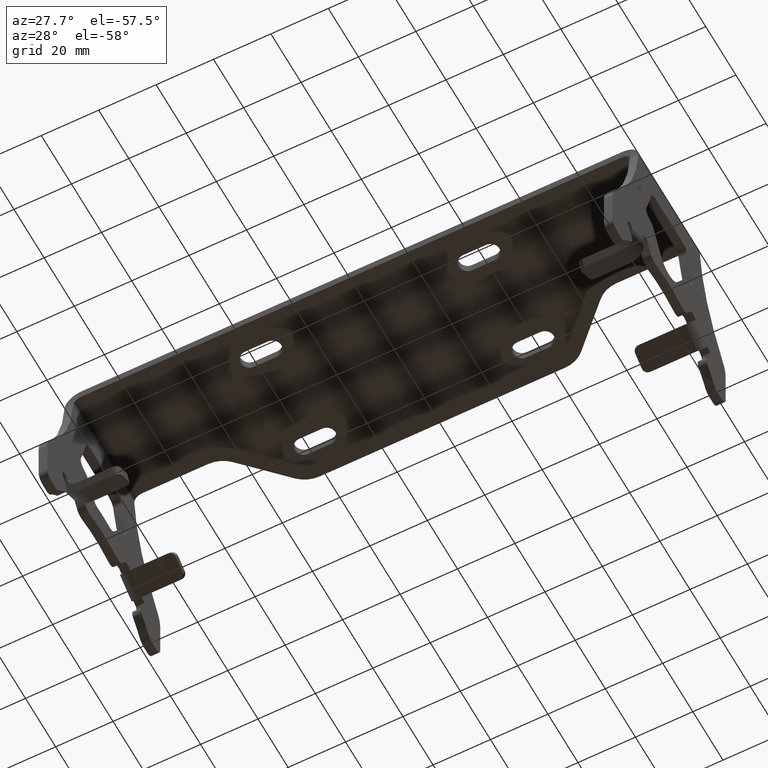
[diagram: clean part render]
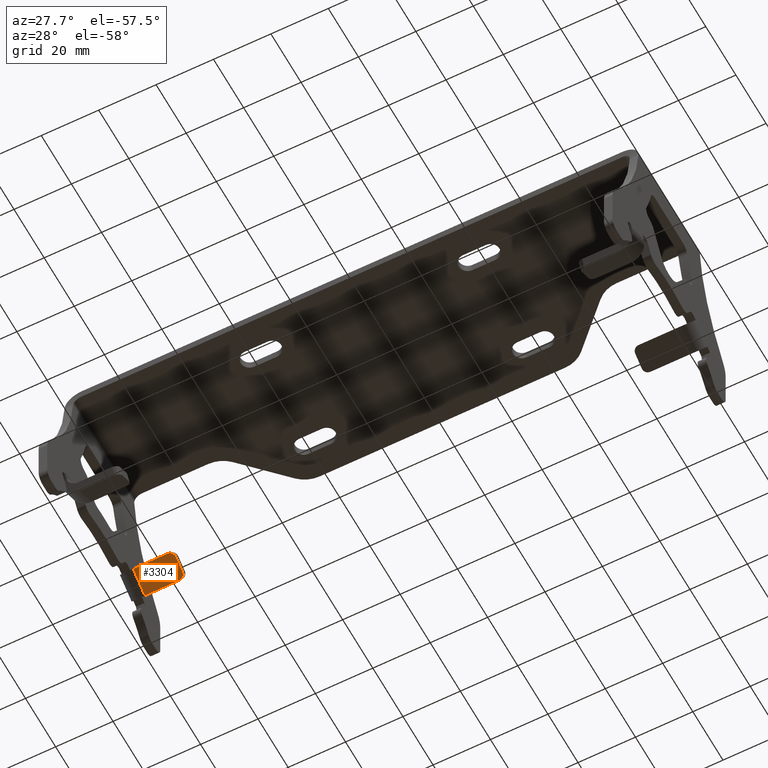
[diagram: same view with one face highlighted and labeled with its STEP entity id]
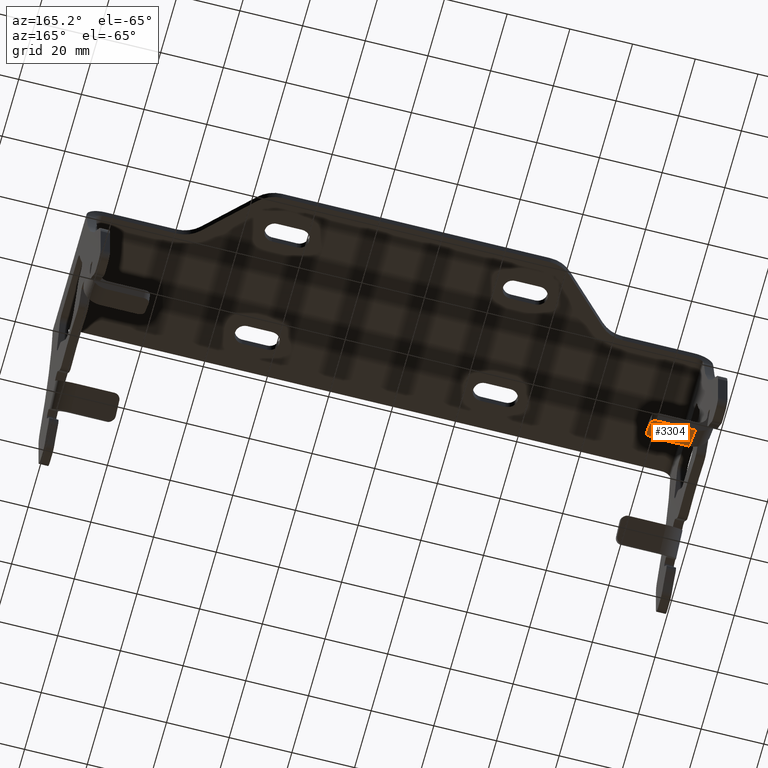
[diagram: same view with one face highlighted and labeled with its STEP entity id]
A machine part, auxiliary view. The second image highlights one B-rep face of the part: STEP entity #3304.
A second angle (auxiliary view) of the same face is appended — the face is thin or edge-on in the first view.
In plain terms, the highlighted planar face has unit normal (0, -0.5, -0.866).
Its self-contained STEP definition (entity closure, byte-faithful):
#127=CIRCLE('',#3581,2.);
#130=CIRCLE('',#3587,2.);
#388=FACE_OUTER_BOUND('',#580,.T.);
#580=EDGE_LOOP('',(#2711,#2712,#2713,#2714,#2715,#2716));
#853=LINE('',#5399,#1181);
#859=LINE('',#5415,#1187);
#860=LINE('',#5418,#1188);
#862=LINE('',#5421,#1190);
#1181=VECTOR('',#4315,10.);
#1187=VECTOR('',#4331,10.);
#1188=VECTOR('',#4334,4.32);
#1190=VECTOR('',#4338,10.);
#1493=VERTEX_POINT('',#5386);
#1494=VERTEX_POINT('',#5387);
#1498=VERTEX_POINT('',#5397);
#1502=VERTEX_POINT('',#5409);
#1503=VERTEX_POINT('',#5413);
#1504=VERTEX_POINT('',#5417);
#1909=EDGE_CURVE('',#1493,#1494,#127,.T.);
#1915=EDGE_CURVE('',#1493,#1498,#853,.T.);
#1920=EDGE_CURVE('',#1502,#1498,#130,.T.);
#1923=EDGE_CURVE('',#1502,#1503,#859,.T.);
#1924=EDGE_CURVE('',#1504,#1494,#860,.T.);
#1926=EDGE_CURVE('',#1503,#1504,#862,.T.);
#2711=ORIENTED_EDGE('',*,*,#1909,.F.);
#2712=ORIENTED_EDGE('',*,*,#1915,.T.);
#2713=ORIENTED_EDGE('',*,*,#1920,.F.);
#2714=ORIENTED_EDGE('',*,*,#1923,.T.);
#2715=ORIENTED_EDGE('',*,*,#1926,.T.);
#2716=ORIENTED_EDGE('',*,*,#1924,.T.);
#3158=PLANE('',#3590);
#3304=ADVANCED_FACE('',(#388),#3158,.T.);
#3581=AXIS2_PLACEMENT_3D('',#5388,#4305,#4306);
#3587=AXIS2_PLACEMENT_3D('',#5410,#4325,#4326);
#3590=AXIS2_PLACEMENT_3D('',#5420,#4336,#4337);
#4305=DIRECTION('center_axis',(-2.74525365740447E-15,0.500000000000001,
0.866025403784438));
#4306=DIRECTION('ref_axis',(0.707106781186548,0.612372435695797,-0.353553390593268));
#4315=DIRECTION('',(-7.77156117237609E-16,-0.866025403784437,0.500000000000003));
#4325=DIRECTION('center_axis',(-2.74525365740447E-15,0.500000000000001,
0.866025403784438));
#4326=DIRECTION('ref_axis',(0.70710678118654,-0.612372435695801,0.353553390593276));
#4331=DIRECTION('',(-1.,-2.55351295663786E-15,-3.41393580072236E-15));
#4334=DIRECTION('',(1.,-4.49743123401394E-16,-2.56996070515082E-15));
#4336=DIRECTION('center_axis',(2.74525365740447E-15,-0.500000000000001,
-0.866025403784438));
#4337=DIRECTION('ref_axis',(-0.866025403784438,-0.433012701892221,0.249999999999999));
#4338=DIRECTION('',(-9.99200722162641E-16,0.866025403784438,-0.500000000000001));
#5386=CARTESIAN_POINT('',(-80.,9.9150635094611,-55.5060981656525));
#5387=CARTESIAN_POINT('',(-82.,11.6471143170299,-56.5060981656526));
#5388=CARTESIAN_POINT('Origin',(-82.,9.91506350946111,-55.5060981656525));
#5397=CARTESIAN_POINT('',(-80.,5.58493649053891,-53.0060981656525));
#5399=CARTESIAN_POINT('',(-80.,3.85288568297001,-52.0060981656524));
#5409=CARTESIAN_POINT('',(-82.,3.85288568297001,-52.0060981656525));
#5410=CARTESIAN_POINT('Origin',(-82.,5.58493649053891,-53.0060981656525));
#5413=CARTESIAN_POINT('',(-94.,3.85288568296998,-52.0060981656525));
#5415=CARTESIAN_POINT('',(-94.,3.85288568296998,-52.0060981656525));
#5417=CARTESIAN_POINT('',(-94.,11.6471143170299,-56.5060981656526));
#5418=CARTESIAN_POINT('',(-107.571680263508,11.64711431703,-56.5060981656525));
#5420=CARTESIAN_POINT('Origin',(-90.392920065877,7.74999999999999,-54.2560981656525));
#5421=CARTESIAN_POINT('',(-94.,7.74999999999999,-54.2560981656525));